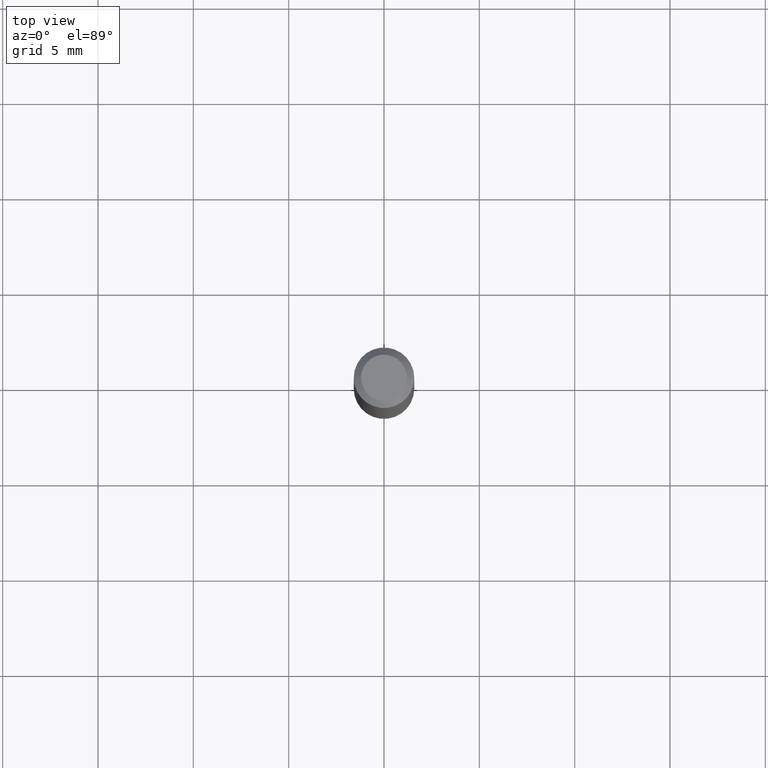
[diagram: clean part render]
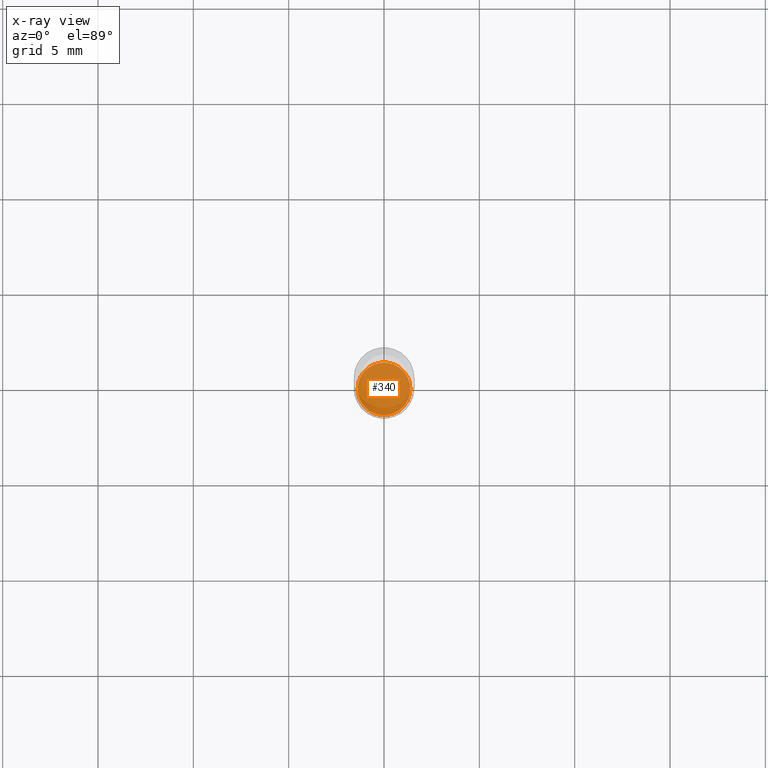
[diagram: x-ray — body ghosted, one internal face saturated and labeled with its STEP entity id]
A machine part, top view, then the same camera in x-ray: the body is ghosted and one INTERNAL B-rep face — a face not visible from any outside direction — is saturated and labeled: STEP entity #340.
In plain terms, the highlighted planar face has unit normal (-0, 0, 1).
Its self-contained STEP definition (entity closure, byte-faithful):
#17 = FACE_OUTER_BOUND ( 'NONE', #103, .T. ) ;
#50 = DIRECTION ( 'NONE',  ( -2.445468806185136597E-29, 3.491481338843145583E-15, 1.000000000000000000 ) ) ;
#65 = DIRECTION ( 'NONE',  ( -2.445468806185136597E-29, 3.491481338843145583E-15, 1.000000000000000000 ) ) ;
#72 = EDGE_CURVE ( 'NONE', #145, #279, #261, .T. ) ;
#91 = DIRECTION ( 'NONE',  ( -2.438088387897960049E-29, 3.491481338843145188E-15, 1.000000000000000000 ) ) ;
#103 = EDGE_LOOP ( 'NONE', ( #314, #347 ) ) ;
#116 = AXIS2_PLACEMENT_3D ( 'NONE', #170, #50, #302 ) ;
#117 = AXIS2_PLACEMENT_3D ( 'NONE', #275, #91, #375 ) ;
#129 = CIRCLE ( 'NONE', #438, 0.05449999999999999983 ) ;
#144 = CARTESIAN_POINT ( 'NONE',  ( -0.05449999999999999983, -4.271232569192234159E-15, -1.335000000000000187 ) ) ;
#145 = VERTEX_POINT ( 'NONE', #406 ) ;
#170 = CARTESIAN_POINT ( 'NONE',  ( 3.264700856257157760E-29, -4.661127587355599122E-15, -1.335000000000000187 ) ) ;
#174 = PLANE ( 'NONE',  #117 ) ;
#198 = CARTESIAN_POINT ( 'NONE',  ( 3.264700856257157760E-29, -4.661127587355599122E-15, -1.335000000000000187 ) ) ;
#261 = CIRCLE ( 'NONE', #116, 0.05449999999999999983 ) ;
#275 = CARTESIAN_POINT ( 'NONE',  ( 3.264700856257157760E-29, -4.661127587355599122E-15, -1.335000000000000187 ) ) ;
#279 = VERTEX_POINT ( 'NONE', #144 ) ;
#285 = DIRECTION ( 'NONE',  ( 1.000000000000000000, -6.982962677686270655E-15, 0.000000000000000000 ) ) ;
#302 = DIRECTION ( 'NONE',  ( 1.000000000000000000, -6.982962677686270655E-15, 0.000000000000000000 ) ) ;
#314 = ORIENTED_EDGE ( 'NONE', *, *, #72, .F. ) ;
#340 = ADVANCED_FACE ( 'NONE', ( #17 ), #174, .F. ) ;
#347 = ORIENTED_EDGE ( 'NONE', *, *, #423, .F. ) ;
#375 = DIRECTION ( 'NONE',  ( 1.000000000000000000, -6.982962677686265922E-15, 4.876176775795935793E-29 ) ) ;
#406 = CARTESIAN_POINT ( 'NONE',  ( 0.05449999999999999983, -5.041699053289501100E-15, -1.335000000000000187 ) ) ;
#423 = EDGE_CURVE ( 'NONE', #279, #145, #129, .T. ) ;
#438 = AXIS2_PLACEMENT_3D ( 'NONE', #198, #65, #285 ) ;